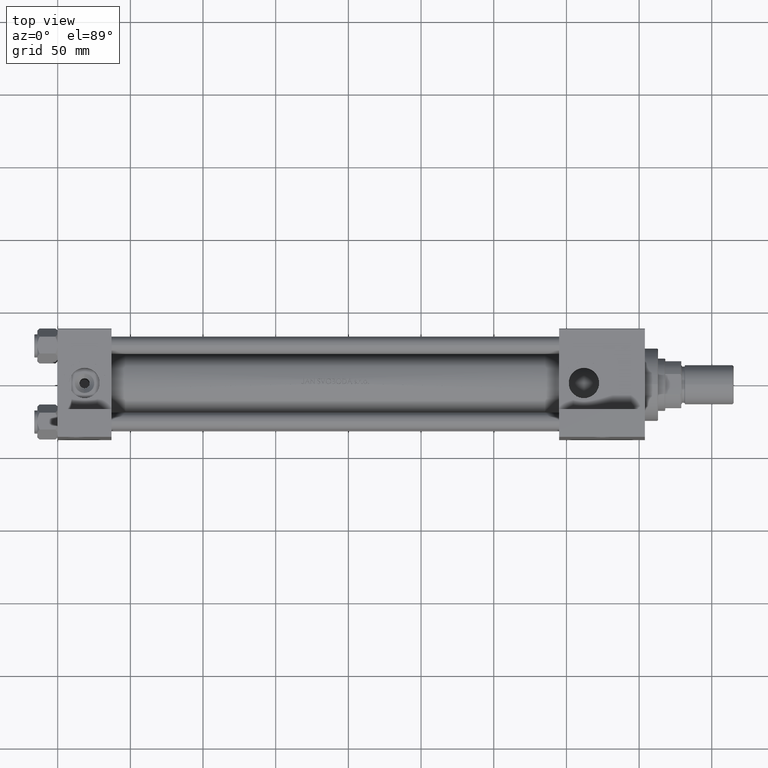
[diagram: clean part render]
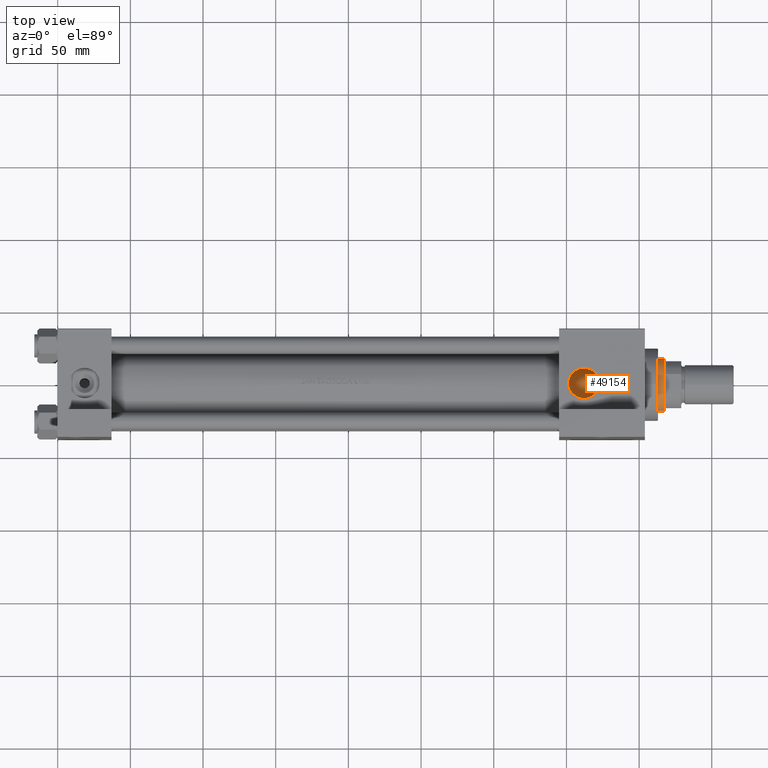
[diagram: same view with one face highlighted and labeled with its STEP entity id]
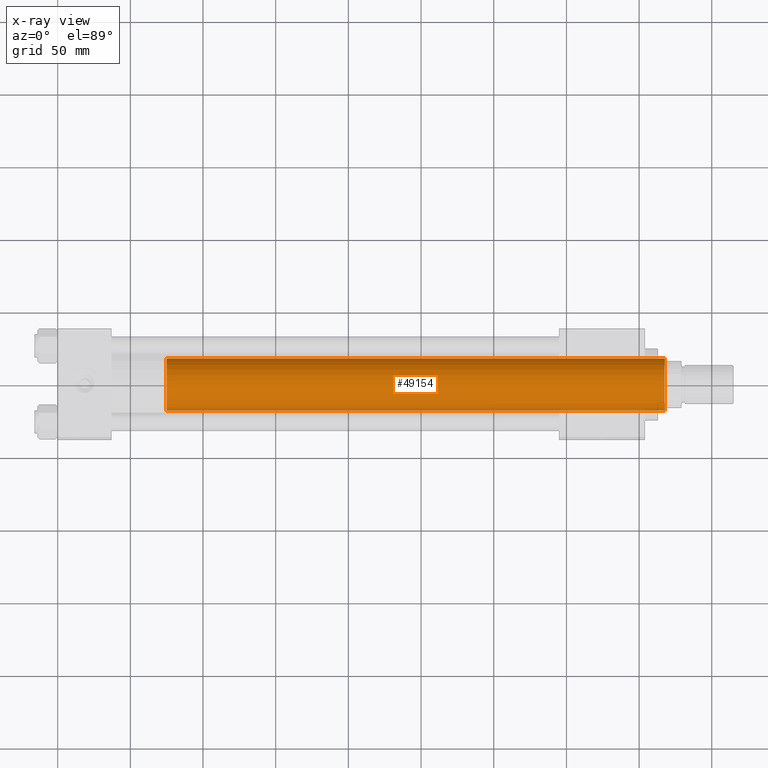
[diagram: x-ray of the same camera — body ghosted, the highlighted face saturated]
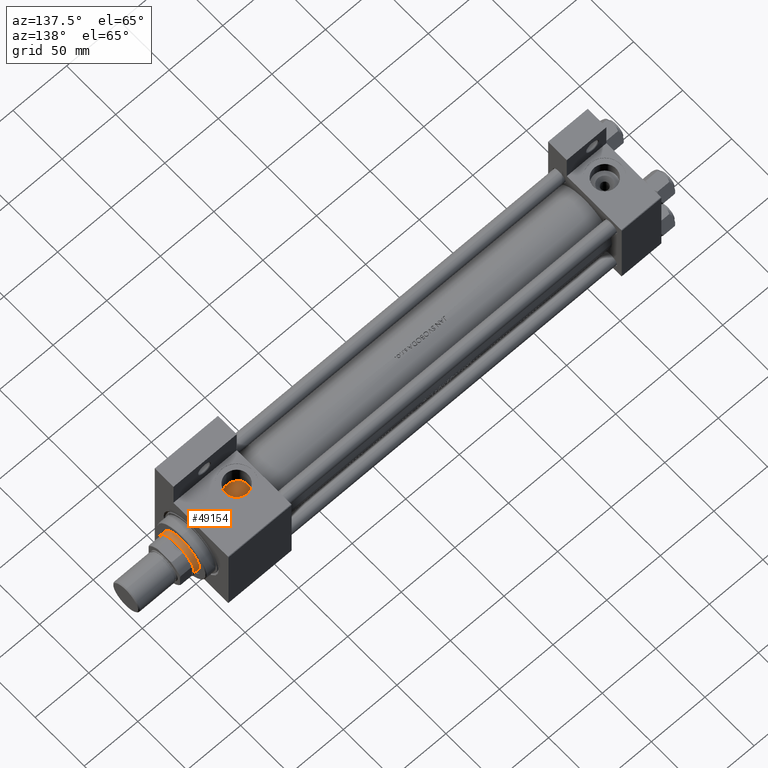
[diagram: same view with one face highlighted and labeled with its STEP entity id]
A machine part, top view. The second image highlights one B-rep face of the part: STEP entity #49154.
The next image is the same camera in x-ray: the body ghosted, the highlighted face saturated — about 1% of this face is hidden behind the body in this view.
A second angle (auxiliary view) of the same face is appended — the face is thin or edge-on in the first view.
In plain terms, the highlighted cylindrical surface (edge-blend (fillet) strip) has radius 18 mm, axis along (-1, 0, 0).
Its self-contained STEP definition (entity closure, byte-faithful):
#888 = CARTESIAN_POINT ( 'NONE',  ( 0.000000000000000000, 0.000000000000000000, 38.00000000000000000 ) ) ;
#1054 = LINE ( 'NONE', #28417, #47281 ) ;
#1852 = VERTEX_POINT ( 'NONE', #44021 ) ;
#2434 = EDGE_CURVE ( 'NONE', #16556, #1852, #9620, .T. ) ;
#4567 = AXIS2_PLACEMENT_3D ( 'NONE', #20594, #35272, #28212 ) ;
#5590 = CYLINDRICAL_SURFACE ( 'NONE', #19052, 18.00000000000000000 ) ;
#6203 = CIRCLE ( 'NONE', #4567, 18.00000000000000000 ) ;
#9452 = ORIENTED_EDGE ( 'NONE', *, *, #27773, .F. ) ;
#9620 = CIRCLE ( 'NONE', #29846, 18.00000000000000000 ) ;
#11276 = ORIENTED_EDGE ( 'NONE', *, *, #30959, .T. ) ;
#13943 = EDGE_LOOP ( 'NONE', ( #9452, #11276, #39119, #37162 ) ) ;
#16556 = VERTEX_POINT ( 'NONE', #26405 ) ;
#16606 = EDGE_CURVE ( 'NONE', #25381, #16556, #23588, .T. ) ;
#19052 = AXIS2_PLACEMENT_3D ( 'NONE', #36706, #24328, #47349 ) ;
#20152 = VECTOR ( 'NONE', #31436, 1000.000000000000000 ) ;
#20594 = CARTESIAN_POINT ( 'NONE',  ( 0.000000000000000000, 0.000000000000000000, 380.5000000000000000 ) ) ;
#23588 = LINE ( 'NONE', #47118, #20152 ) ;
#24328 = DIRECTION ( 'NONE',  ( -0.000000000000000000, -0.000000000000000000, -1.000000000000000000 ) ) ;
#25381 = VERTEX_POINT ( 'NONE', #45664 ) ;
#26405 = CARTESIAN_POINT ( 'NONE',  ( -18.00000000000000000, 0.000000000000000000, 38.00000000000000000 ) ) ;
#27744 = DIRECTION ( 'NONE',  ( 1.000000000000000000, 0.000000000000000000, 0.000000000000000000 ) ) ;
#27773 = EDGE_CURVE ( 'NONE', #38073, #1852, #1054, .T. ) ;
#28212 = DIRECTION ( 'NONE',  ( 1.000000000000000000, 0.000000000000000000, 0.000000000000000000 ) ) ;
#28417 = CARTESIAN_POINT ( 'NONE',  ( 18.00000000000000000, 2.204364238465235428E-15, 381.0000000000000000 ) ) ;
#29846 = AXIS2_PLACEMENT_3D ( 'NONE', #888, #32022, #27744 ) ;
#30959 = EDGE_CURVE ( 'NONE', #38073, #25381, #6203, .T. ) ;
#31436 = DIRECTION ( 'NONE',  ( -0.000000000000000000, -0.000000000000000000, -1.000000000000000000 ) ) ;
#32022 = DIRECTION ( 'NONE',  ( 0.000000000000000000, 0.000000000000000000, 1.000000000000000000 ) ) ;
#35272 = DIRECTION ( 'NONE',  ( 0.000000000000000000, 0.000000000000000000, -1.000000000000000000 ) ) ;
#36706 = CARTESIAN_POINT ( 'NONE',  ( 0.000000000000000000, 0.000000000000000000, 381.0000000000000000 ) ) ;
#37162 = ORIENTED_EDGE ( 'NONE', *, *, #2434, .T. ) ;
#38073 = VERTEX_POINT ( 'NONE', #48240 ) ;
#39119 = ORIENTED_EDGE ( 'NONE', *, *, #16606, .T. ) ;
#40264 = DIRECTION ( 'NONE',  ( -0.000000000000000000, -0.000000000000000000, -1.000000000000000000 ) ) ;
#44021 = CARTESIAN_POINT ( 'NONE',  ( 18.00000000000000000, 2.204364238465235428E-15, 38.00000000000000000 ) ) ;
#45664 = CARTESIAN_POINT ( 'NONE',  ( -18.00000000000000000, 0.000000000000000000, 380.5000000000000000 ) ) ;
#47118 = CARTESIAN_POINT ( 'NONE',  ( -18.00000000000000000, 0.000000000000000000, 381.0000000000000000 ) ) ;
#47281 = VECTOR ( 'NONE', #40264, 1000.000000000000000 ) ;
#47349 = DIRECTION ( 'NONE',  ( -1.000000000000000000, 0.000000000000000000, 0.000000000000000000 ) ) ;
#48240 = CARTESIAN_POINT ( 'NONE',  ( 18.00000000000000000, 2.204364238465235428E-15, 380.5000000000000000 ) ) ;
#48348 = FACE_OUTER_BOUND ( 'NONE', #13943, .T. ) ;
#49154 = ADVANCED_FACE ( 'NONE', ( #48348 ), #5590, .T. ) ;